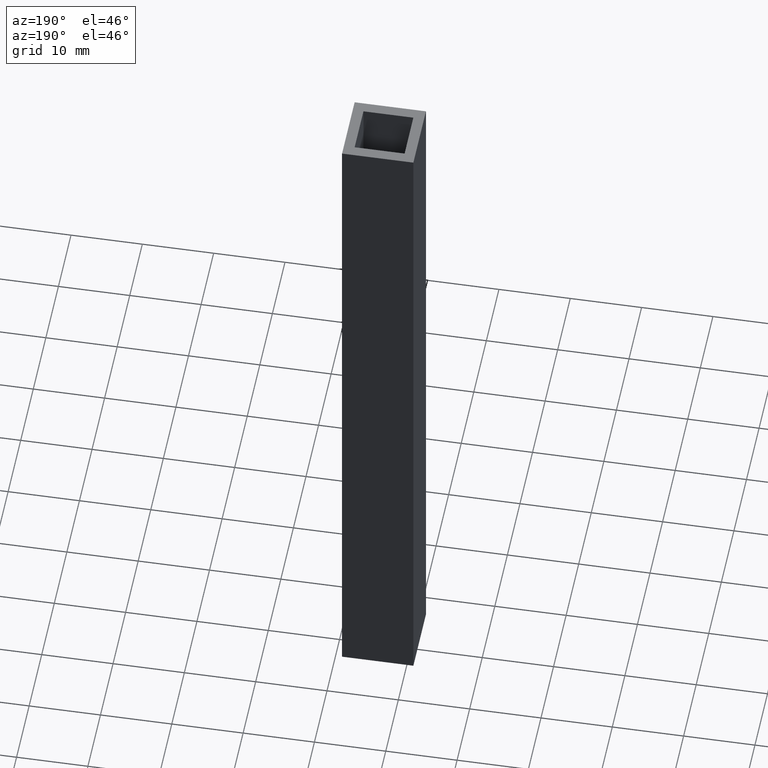
[diagram: clean part render]
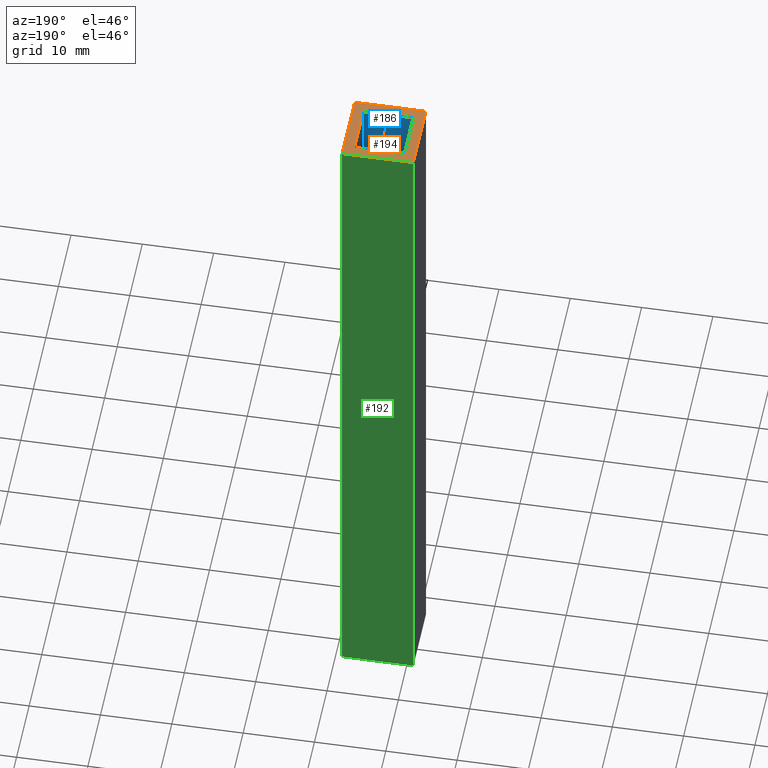
[diagram: same view with three faces highlighted in distinct colors, each labeled with its STEP entity id]
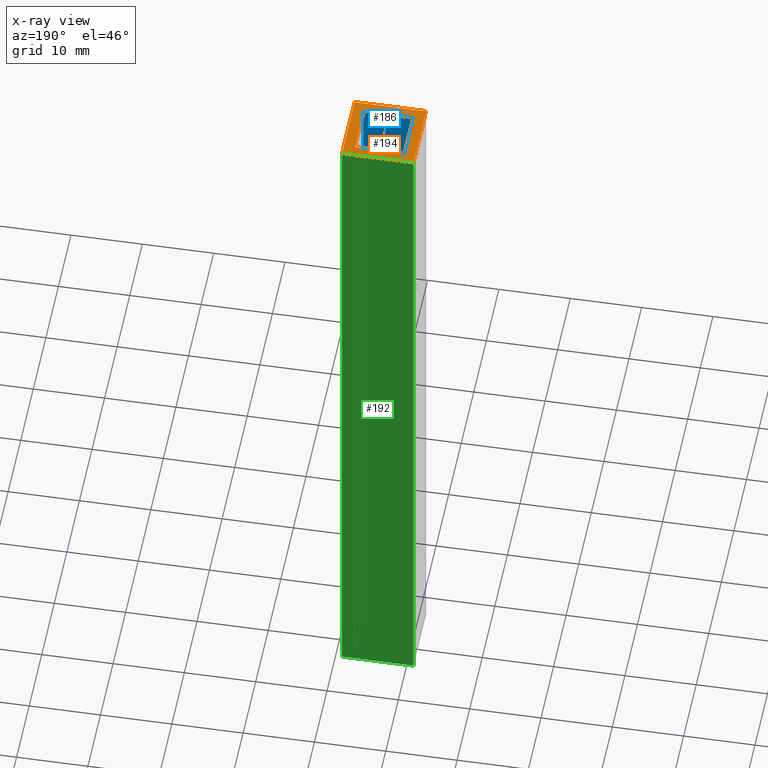
[diagram: x-ray of the same camera — body ghosted, the three highlighted faces saturated]
A machine part, auxiliary view with three faces highlighted in distinct colors.
The next image is the same camera in x-ray (body ghosted, the three faces saturated) — at least one of them is partly hidden behind the body in this view.
Their STEP definitions:

[orange] entity #194 — the highlighted planar face has unit normal (0, 0, 1).
#16=FACE_BOUND('',#38,.T.);
#26=FACE_OUTER_BOUND('',#37,.T.);
#37=EDGE_LOOP('',(#167,#168,#169,#170));
#38=EDGE_LOOP('',(#171,#172,#173,#174));
#39=LINE('',#257,#63);
#43=LINE('',#265,#67);
#46=LINE('',#271,#70);
#49=LINE('',#276,#73);
#51=LINE('',#281,#75);
#55=LINE('',#289,#79);
#58=LINE('',#295,#82);
#61=LINE('',#300,#85);
#63=VECTOR('',#211,7.);
#67=VECTOR('',#217,7.);
#70=VECTOR('',#222,7.);
#73=VECTOR('',#227,7.);
#75=VECTOR('',#231,10.);
#79=VECTOR('',#237,10.);
#82=VECTOR('',#242,10.);
#85=VECTOR('',#247,10.);
#87=VERTEX_POINT('',#255);
#88=VERTEX_POINT('',#256);
#91=VERTEX_POINT('',#264);
#93=VERTEX_POINT('',#270);
#95=VERTEX_POINT('',#279);
#96=VERTEX_POINT('',#280);
#99=VERTEX_POINT('',#288);
#101=VERTEX_POINT('',#294);
#103=EDGE_CURVE('',#87,#88,#39,.T.);
#107=EDGE_CURVE('',#91,#87,#43,.T.);
#110=EDGE_CURVE('',#93,#91,#46,.T.);
#113=EDGE_CURVE('',#88,#93,#49,.T.);
#115=EDGE_CURVE('',#95,#96,#51,.T.);
#119=EDGE_CURVE('',#99,#95,#55,.T.);
#122=EDGE_CURVE('',#101,#99,#58,.T.);
#125=EDGE_CURVE('',#96,#101,#61,.T.);
#167=ORIENTED_EDGE('',*,*,#125,.F.);
#168=ORIENTED_EDGE('',*,*,#115,.F.);
#169=ORIENTED_EDGE('',*,*,#119,.F.);
#170=ORIENTED_EDGE('',*,*,#122,.F.);
#171=ORIENTED_EDGE('',*,*,#103,.T.);
#172=ORIENTED_EDGE('',*,*,#113,.T.);
#173=ORIENTED_EDGE('',*,*,#110,.T.);
#174=ORIENTED_EDGE('',*,*,#107,.T.);
#184=PLANE('',#206);
#194=ADVANCED_FACE('',(#26,#16),#184,.T.);
#206=AXIS2_PLACEMENT_3D('',#303,#251,#252);
#211=DIRECTION('',(0.,1.,0.));
#217=DIRECTION('',(-1.,0.,0.));
#222=DIRECTION('',(0.,-1.,0.));
#227=DIRECTION('',(1.,0.,0.));
#231=DIRECTION('',(0.,1.,0.));
#237=DIRECTION('',(-1.,0.,0.));
#242=DIRECTION('',(0.,-1.,0.));
#247=DIRECTION('',(1.,0.,0.));
#251=DIRECTION('center_axis',(0.,0.,1.));
#252=DIRECTION('ref_axis',(1.,0.,0.));
#255=CARTESIAN_POINT('',(30.3330423541557,26.1378745652133,0.));
#256=CARTESIAN_POINT('',(30.3330423541557,33.1378745652133,0.));
#257=CARTESIAN_POINT('',(30.3330423541557,27.8878745652133,0.));
#264=CARTESIAN_POINT('',(37.3330423541557,26.1378745652133,0.));
#265=CARTESIAN_POINT('',(35.5830423541557,26.1378745652133,0.));
#270=CARTESIAN_POINT('',(37.3330423541557,33.1378745652133,0.));
#271=CARTESIAN_POINT('',(37.3330423541557,31.3878745652133,0.));
#276=CARTESIAN_POINT('',(32.0830423541557,33.1378745652133,0.));
#279=CARTESIAN_POINT('',(28.8330423541557,24.6378745652133,0.));
#280=CARTESIAN_POINT('',(28.8330423541557,34.6378745652133,0.));
#281=CARTESIAN_POINT('',(28.8330423541557,24.6378745652133,0.));
#288=CARTESIAN_POINT('',(38.8330423541557,24.6378745652133,0.));
#289=CARTESIAN_POINT('',(38.8330423541557,24.6378745652133,0.));
#294=CARTESIAN_POINT('',(38.8330423541557,34.6378745652133,0.));
#295=CARTESIAN_POINT('',(38.8330423541557,34.6378745652133,0.));
#300=CARTESIAN_POINT('',(28.8330423541557,34.6378745652133,0.));
#303=CARTESIAN_POINT('Origin',(33.8330423541557,29.6378745652133,0.));

[blue] entity #186 — the highlighted planar face has unit normal (0, -1, 0).
#18=FACE_OUTER_BOUND('',#28,.T.);
#28=EDGE_LOOP('',(#131,#132,#133,#134));
#40=LINE('',#259,#64);
#43=LINE('',#265,#67);
#44=LINE('',#267,#68);
#45=LINE('',#268,#69);
#64=VECTOR('',#212,100.);
#67=VECTOR('',#217,7.);
#68=VECTOR('',#218,100.);
#69=VECTOR('',#219,7.);
#87=VERTEX_POINT('',#255);
#89=VERTEX_POINT('',#258);
#91=VERTEX_POINT('',#264);
#92=VERTEX_POINT('',#266);
#104=EDGE_CURVE('',#87,#89,#40,.T.);
#107=EDGE_CURVE('',#91,#87,#43,.T.);
#108=EDGE_CURVE('',#91,#92,#44,.T.);
#109=EDGE_CURVE('',#89,#92,#45,.T.);
#131=ORIENTED_EDGE('',*,*,#107,.F.);
#132=ORIENTED_EDGE('',*,*,#108,.T.);
#133=ORIENTED_EDGE('',*,*,#109,.F.);
#134=ORIENTED_EDGE('',*,*,#104,.F.);
#176=PLANE('',#198);
#186=ADVANCED_FACE('',(#18),#176,.F.);
#198=AXIS2_PLACEMENT_3D('',#263,#215,#216);
#212=DIRECTION('',(0.,0.,-1.));
#215=DIRECTION('center_axis',(0.,-1.,0.));
#216=DIRECTION('ref_axis',(-1.,0.,0.));
#217=DIRECTION('',(-1.,0.,0.));
#218=DIRECTION('',(0.,0.,-1.));
#219=DIRECTION('',(1.,0.,0.));
#255=CARTESIAN_POINT('',(30.3330423541557,26.1378745652133,0.));
#258=CARTESIAN_POINT('',(30.3330423541557,26.1378745652133,-100.));
#259=CARTESIAN_POINT('',(30.3330423541557,26.1378745652133,0.));
#263=CARTESIAN_POINT('Origin',(37.3330423541557,26.1378745652133,0.));
#264=CARTESIAN_POINT('',(37.3330423541557,26.1378745652133,0.));
#265=CARTESIAN_POINT('',(35.5830423541557,26.1378745652133,0.));
#266=CARTESIAN_POINT('',(37.3330423541557,26.1378745652133,-100.));
#267=CARTESIAN_POINT('',(37.3330423541557,26.1378745652133,0.));
#268=CARTESIAN_POINT('',(35.5830423541557,26.1378745652133,-100.));

[green] entity #192 — the highlighted planar face has unit normal (0, 1, 0).
#24=FACE_OUTER_BOUND('',#34,.T.);
#34=EDGE_LOOP('',(#155,#156,#157,#158));
#52=LINE('',#283,#76);
#60=LINE('',#298,#84);
#61=LINE('',#300,#85);
#62=LINE('',#301,#86);
#76=VECTOR('',#232,100.);
#84=VECTOR('',#244,100.);
#85=VECTOR('',#247,10.);
#86=VECTOR('',#248,10.);
#96=VERTEX_POINT('',#280);
#97=VERTEX_POINT('',#282);
#101=VERTEX_POINT('',#294);
#102=VERTEX_POINT('',#296);
#116=EDGE_CURVE('',#96,#97,#52,.T.);
#124=EDGE_CURVE('',#101,#102,#60,.T.);
#125=EDGE_CURVE('',#96,#101,#61,.T.);
#126=EDGE_CURVE('',#97,#102,#62,.T.);
#155=ORIENTED_EDGE('',*,*,#125,.T.);
#156=ORIENTED_EDGE('',*,*,#124,.T.);
#157=ORIENTED_EDGE('',*,*,#126,.F.);
#158=ORIENTED_EDGE('',*,*,#116,.F.);
#182=PLANE('',#204);
#192=ADVANCED_FACE('',(#24),#182,.T.);
#204=AXIS2_PLACEMENT_3D('',#299,#245,#246);
#232=DIRECTION('',(0.,0.,-1.));
#244=DIRECTION('',(0.,0.,-1.));
#245=DIRECTION('center_axis',(0.,1.,0.));
#246=DIRECTION('ref_axis',(1.,0.,0.));
#247=DIRECTION('',(1.,0.,0.));
#248=DIRECTION('',(1.,0.,0.));
#280=CARTESIAN_POINT('',(28.8330423541557,34.6378745652133,0.));
#282=CARTESIAN_POINT('',(28.8330423541557,34.6378745652133,-100.));
#283=CARTESIAN_POINT('',(28.8330423541557,34.6378745652133,0.));
#294=CARTESIAN_POINT('',(38.8330423541557,34.6378745652133,0.));
#296=CARTESIAN_POINT('',(38.8330423541557,34.6378745652133,-100.));
#298=CARTESIAN_POINT('',(38.8330423541557,34.6378745652133,0.));
#299=CARTESIAN_POINT('Origin',(28.8330423541557,34.6378745652133,0.));
#300=CARTESIAN_POINT('',(28.8330423541557,34.6378745652133,0.));
#301=CARTESIAN_POINT('',(28.8330423541557,34.6378745652133,-100.));